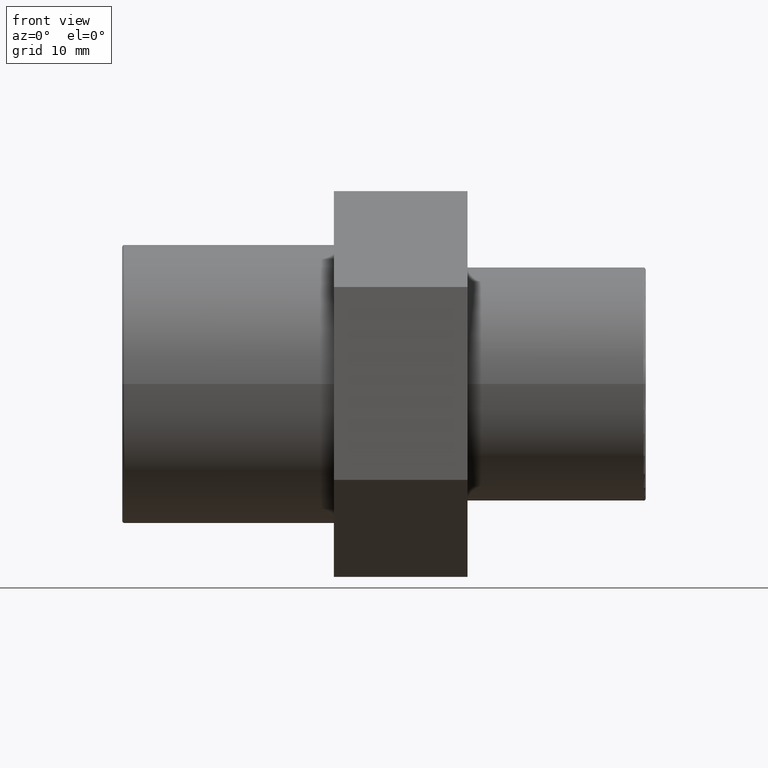
[diagram: clean part render]
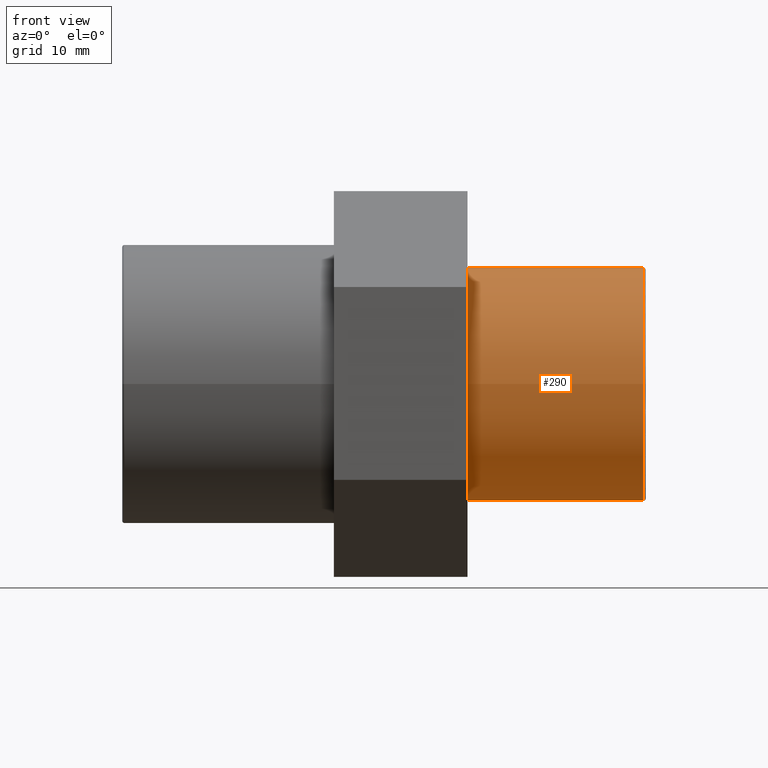
[diagram: same view with one face highlighted and labeled with its STEP entity id]
A machine part, front view. The second image highlights one B-rep face of the part: STEP entity #290.
In plain terms, the highlighted cylindrical surface (bore or boss wall) has radius 10.4775 mm, axis along (-1, -0, 0).
Its self-contained STEP definition (entity closure, byte-faithful):
#16=CYLINDRICAL_SURFACE('',#318,10.4775);
#24=FACE_BOUND('',#89,.T.);
#39=CIRCLE('',#317,10.4775);
#40=CIRCLE('',#319,10.4775);
#63=FACE_OUTER_BOUND('',#88,.T.);
#88=EDGE_LOOP('',(#236));
#89=EDGE_LOOP('',(#237));
#162=VERTEX_POINT('',#477);
#163=VERTEX_POINT('',#480);
#194=EDGE_CURVE('',#162,#162,#39,.T.);
#195=EDGE_CURVE('',#163,#163,#40,.T.);
#236=ORIENTED_EDGE('',*,*,#195,.F.);
#237=ORIENTED_EDGE('',*,*,#194,.F.);
#290=ADVANCED_FACE('',(#63,#24),#16,.T.);
#317=AXIS2_PLACEMENT_3D('',#478,#386,#387);
#318=AXIS2_PLACEMENT_3D('',#479,#388,#389);
#319=AXIS2_PLACEMENT_3D('',#481,#390,#391);
#386=DIRECTION('center_axis',(1.,6.73555739531044E-16,0.));
#387=DIRECTION('ref_axis',(-6.72200172986478E-16,1.,6.12323399573677E-17));
#388=DIRECTION('center_axis',(-1.,-6.73555739531044E-16,0.));
#389=DIRECTION('ref_axis',(6.66133814775094E-16,-1.,0.));
#390=DIRECTION('center_axis',(-1.,-6.73555739531044E-16,0.));
#391=DIRECTION('ref_axis',(0.,0.,1.));
#477=CARTESIAN_POINT('',(23.3,-10.4775,-1.92468552570996E-15));
#478=CARTESIAN_POINT('Origin',(23.3,2.00107286980678E-14,0.));
#479=CARTESIAN_POINT('Origin',(15.5,1.47569939297256E-14,0.));
#480=CARTESIAN_POINT('',(7.50000000000002,-10.4775,0.));
#481=CARTESIAN_POINT('Origin',(7.50000000000001,9.36854801347726E-15,0.));